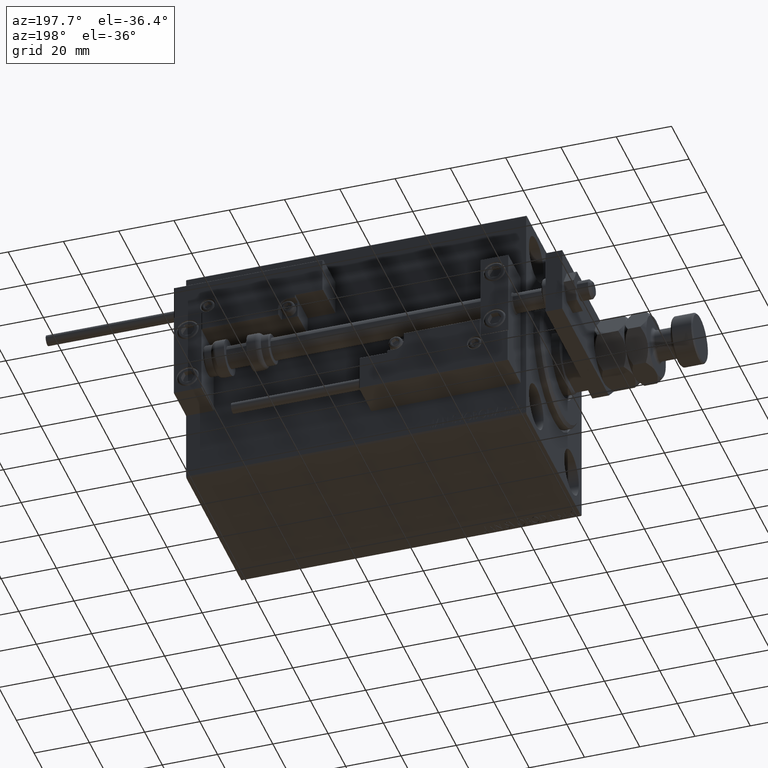
[diagram: clean part render]
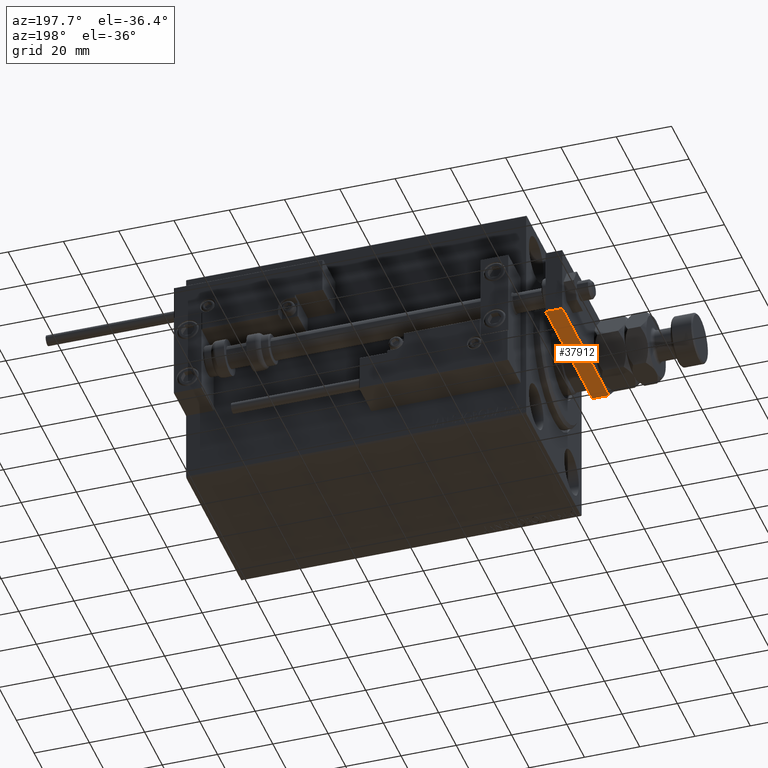
[diagram: same view with one face highlighted and labeled with its STEP entity id]
A machine part, auxiliary view. The second image highlights one B-rep face of the part: STEP entity #37912.
In plain terms, the highlighted planar face has unit normal (0, -0, 1).
Its self-contained STEP definition (entity closure, byte-faithful):
#243 = CARTESIAN_POINT ( 'NONE',  ( -12.49999999999999822, 60.00000000000000000, 6.000000000000000000 ) ) ;
#1879 = LINE ( 'NONE', #41666, #35434 ) ;
#2048 = FACE_OUTER_BOUND ( 'NONE', #30024, .T. ) ;
#4415 = VERTEX_POINT ( 'NONE', #34699 ) ;
#5806 = VERTEX_POINT ( 'NONE', #9141 ) ;
#6874 = CARTESIAN_POINT ( 'NONE',  ( -12.49999999999999822, 60.00000000000000000, 6.000000000000000000 ) ) ;
#9141 = CARTESIAN_POINT ( 'NONE',  ( -12.50000000000000355, 7.000000000000013323, 6.000000000000000000 ) ) ;
#11656 = AXIS2_PLACEMENT_3D ( 'NONE', #18295, #18032, #38685 ) ;
#11994 = LINE ( 'NONE', #20355, #29083 ) ;
#14007 = VERTEX_POINT ( 'NONE', #40151 ) ;
#14573 = ORIENTED_EDGE ( 'NONE', *, *, #46539, .F. ) ;
#15718 = VECTOR ( 'NONE', #40791, 1000.000000000000000 ) ;
#18032 = DIRECTION ( 'NONE',  ( 1.000000000000000000, -8.673617379884034239E-17, 0.000000000000000000 ) ) ;
#18295 = CARTESIAN_POINT ( 'NONE',  ( -12.49999999999999822, 60.00000000000000000, 6.000000000000000000 ) ) ;
#20355 = CARTESIAN_POINT ( 'NONE',  ( -12.50000000000000355, 7.000000000000013323, 6.000000000000000000 ) ) ;
#20362 = EDGE_CURVE ( 'NONE', #30304, #14007, #1879, .T. ) ;
#27490 = VECTOR ( 'NONE', #39041, 1000.000000000000000 ) ;
#28706 = ORIENTED_EDGE ( 'NONE', *, *, #51494, .T. ) ;
#29083 = VECTOR ( 'NONE', #47837, 1000.000000000000000 ) ;
#29791 = PLANE ( 'NONE',  #11656 ) ;
#30024 = EDGE_LOOP ( 'NONE', ( #42877, #28706, #14573, #50985 ) ) ;
#30304 = VERTEX_POINT ( 'NONE', #6874 ) ;
#32163 = LINE ( 'NONE', #243, #15718 ) ;
#34699 = CARTESIAN_POINT ( 'NONE',  ( -12.50000000000000355, 7.000000000000013323, 0.000000000000000000 ) ) ;
#35434 = VECTOR ( 'NONE', #45586, 1000.000000000000000 ) ;
#37912 = ADVANCED_FACE ( 'NONE', ( #2048 ), #29791, .F. ) ;
#38685 = DIRECTION ( 'NONE',  ( 8.673617379884034239E-17, 1.000000000000000000, 0.000000000000000000 ) ) ;
#39041 = DIRECTION ( 'NONE',  ( -8.673617379884035472E-17, -1.000000000000000000, 0.000000000000000000 ) ) ;
#39812 = CARTESIAN_POINT ( 'NONE',  ( -12.49999999999999822, 60.00000000000000000, 0.000000000000000000 ) ) ;
#40151 = CARTESIAN_POINT ( 'NONE',  ( -12.49999999999999822, 60.00000000000000000, 0.000000000000000000 ) ) ;
#40791 = DIRECTION ( 'NONE',  ( -8.673617379884035472E-17, -1.000000000000000000, 0.000000000000000000 ) ) ;
#41666 = CARTESIAN_POINT ( 'NONE',  ( -12.49999999999999822, 60.00000000000000000, 6.000000000000000000 ) ) ;
#42877 = ORIENTED_EDGE ( 'NONE', *, *, #49012, .T. ) ;
#43998 = LINE ( 'NONE', #39812, #27490 ) ;
#45586 = DIRECTION ( 'NONE',  ( -0.000000000000000000, -0.000000000000000000, -1.000000000000000000 ) ) ;
#46539 = EDGE_CURVE ( 'NONE', #30304, #5806, #32163, .T. ) ;
#47837 = DIRECTION ( 'NONE',  ( 0.000000000000000000, 0.000000000000000000, 1.000000000000000000 ) ) ;
#49012 = EDGE_CURVE ( 'NONE', #14007, #4415, #43998, .T. ) ;
#50985 = ORIENTED_EDGE ( 'NONE', *, *, #20362, .T. ) ;
#51494 = EDGE_CURVE ( 'NONE', #4415, #5806, #11994, .T. ) ;